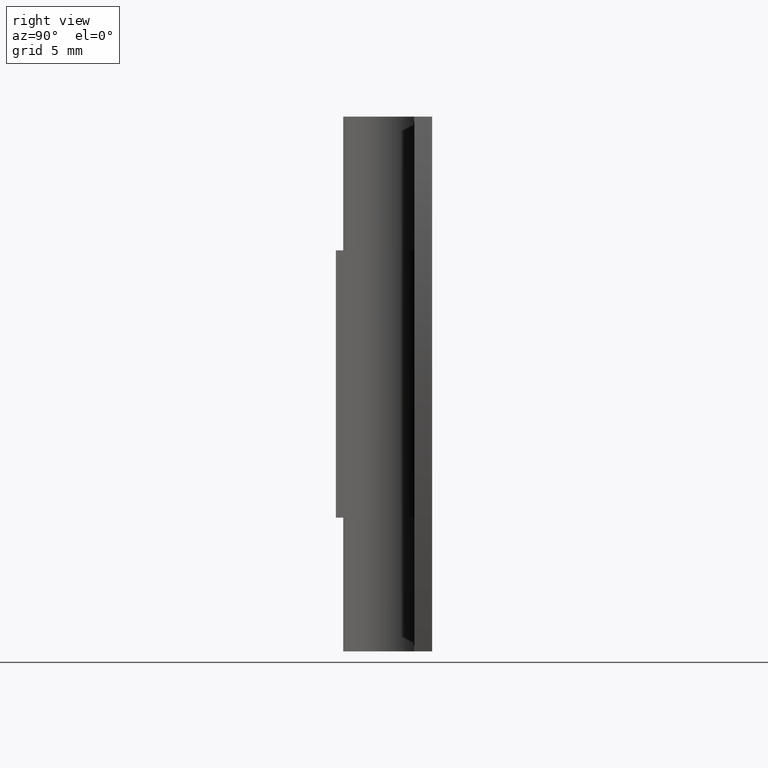
[diagram: clean part render]
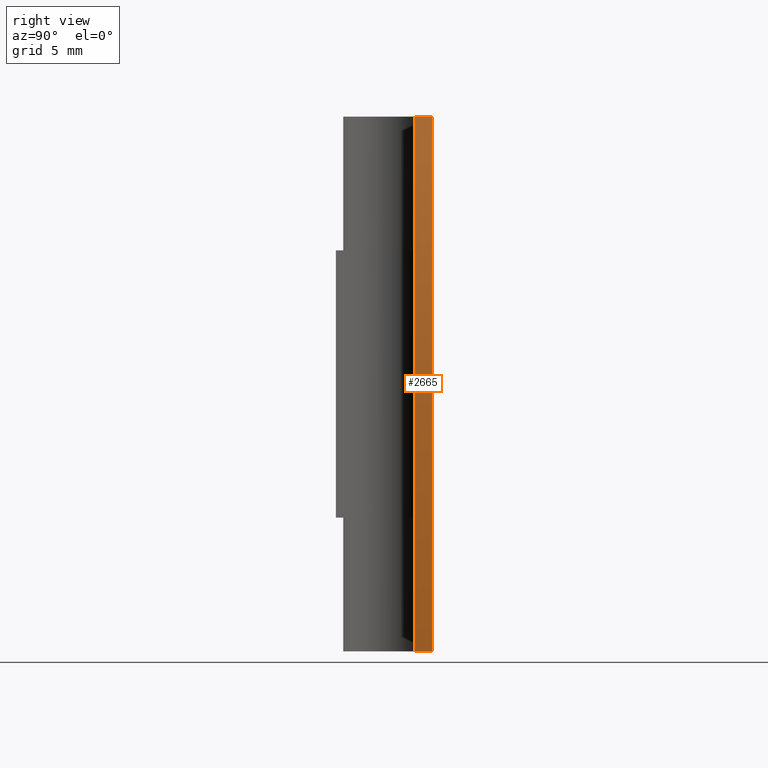
[diagram: same view with one face highlighted and labeled with its STEP entity id]
A machine part, right view. The second image highlights one B-rep face of the part: STEP entity #2665.
In plain terms, the highlighted face is a freeform B-spline surface patch.
Its self-contained STEP definition (entity closure, byte-faithful):
#2588=CARTESIAN_POINT('',(12.123971686304801,2.499999999999945,0.000000138653721));
#2589=VERTEX_POINT('',#2588);
#2595=CARTESIAN_POINT('',(12.123971686304801,1.499999999999946,0.000000138653721));
#2596=VERTEX_POINT('',#2595);
#2597=CARTESIAN_POINT('',(12.123971686304801,1.499999999999946,0.000000138653721));
#2598=CARTESIAN_POINT('',(12.123971686304801,2.499999999999945,0.000000138653721));
#2599=QUASI_UNIFORM_CURVE('',1,(#2597,#2598),.UNSPECIFIED.,.F.,.U.);
#2600=EDGE_CURVE('',#2596,#2589,#2599,.T.);
#2613=CARTESIAN_POINT('',(11.990470183706901,1.474999999999946,-0.596096598399418));
#2614=CARTESIAN_POINT('',(11.990470183706901,2.525624999999946,-0.596096598399418));
#2615=CARTESIAN_POINT('',(15.659281310477029,1.474999999999946,15.456727563493923));
#2616=CARTESIAN_POINT('',(15.659281310477029,2.525624999999946,15.456727563493923));
#2617=CARTESIAN_POINT('',(11.786857269466754,1.474999999999946,31.461654014533437));
#2618=CARTESIAN_POINT('',(11.786857269466754,2.525624999999945,31.461654014533437));
#2626=(BOUNDED_SURFACE()B_SPLINE_SURFACE(1,2,((#2613,#2615,#2617),(#2614,#2616,#2618)),.UNSPECIFIED.,.F.,.F.,.U.)B_SPLINE_SURFACE_WITH_KNOTS((2,2),(3,3),(0.0,1.0),(0.0,32.491499639412758),.UNSPECIFIED.)GEOMETRIC_REPRESENTATION_ITEM()RATIONAL_B_SPLINE_SURFACE(((1.0,0.971927124344133,0.996916400950411),(1.0,0.971927124344133,0.996916400950411)))REPRESENTATION_ITEM('')SURFACE());
#2627=CARTESIAN_POINT('',(12.123971686304801,2.499999999999945,29.999999861346300));
#2628=VERTEX_POINT('',#2627);
#2629=CARTESIAN_POINT('',(12.123971686304809,2.499999999999945,0.000000138653708));
#2630=CARTESIAN_POINT('',(15.414697532576740,2.499999999999945,15.000000000000009));
#2631=CARTESIAN_POINT('',(12.123971686304820,2.499999999999945,29.999999861346261));
#2639=(BOUNDED_CURVE()B_SPLINE_CURVE(2,(#2629,#2630,#2631),.UNSPECIFIED.,.F.,.U.)CURVE()GEOMETRIC_REPRESENTATION_ITEM()QUASI_UNIFORM_CURVE()RATIONAL_B_SPLINE_CURVE((1.0,0.976771024090069,1.0))REPRESENTATION_ITEM(''));
#2640=EDGE_CURVE('',#2589,#2628,#2639,.T.);
#2641=ORIENTED_EDGE('',*,*,#2640,.T.);
#2642=CARTESIAN_POINT('',(12.123971686304801,1.499999999999946,29.999999861346300));
#2643=VERTEX_POINT('',#2642);
#2644=CARTESIAN_POINT('',(12.123971686304801,1.499999999999946,29.999999861346300));
#2645=CARTESIAN_POINT('',(12.123971686304801,2.499999999999945,29.999999861346300));
#2646=QUASI_UNIFORM_CURVE('',1,(#2644,#2645),.UNSPECIFIED.,.F.,.U.);
#2647=EDGE_CURVE('',#2643,#2628,#2646,.T.);
#2648=ORIENTED_EDGE('',*,*,#2647,.F.);
#2649=CARTESIAN_POINT('',(12.123971686304809,1.499999999999946,0.000000138653708));
#2650=CARTESIAN_POINT('',(15.414697532576740,1.499999999999947,15.000000000000009));
#2651=CARTESIAN_POINT('',(12.123971686304820,1.499999999999946,29.999999861346261));
#2659=(BOUNDED_CURVE()B_SPLINE_CURVE(2,(#2649,#2650,#2651),.UNSPECIFIED.,.F.,.U.)CURVE()GEOMETRIC_REPRESENTATION_ITEM()QUASI_UNIFORM_CURVE()RATIONAL_B_SPLINE_CURVE((1.0,0.976771024090069,1.0))REPRESENTATION_ITEM(''));
#2660=EDGE_CURVE('',#2596,#2643,#2659,.T.);
#2661=ORIENTED_EDGE('',*,*,#2660,.F.);
#2662=ORIENTED_EDGE('',*,*,#2600,.T.);
#2663=EDGE_LOOP('',(#2641,#2648,#2661,#2662));
#2664=FACE_OUTER_BOUND('',#2663,.T.);
#2665=ADVANCED_FACE('',(#2664),#2626,.T.);